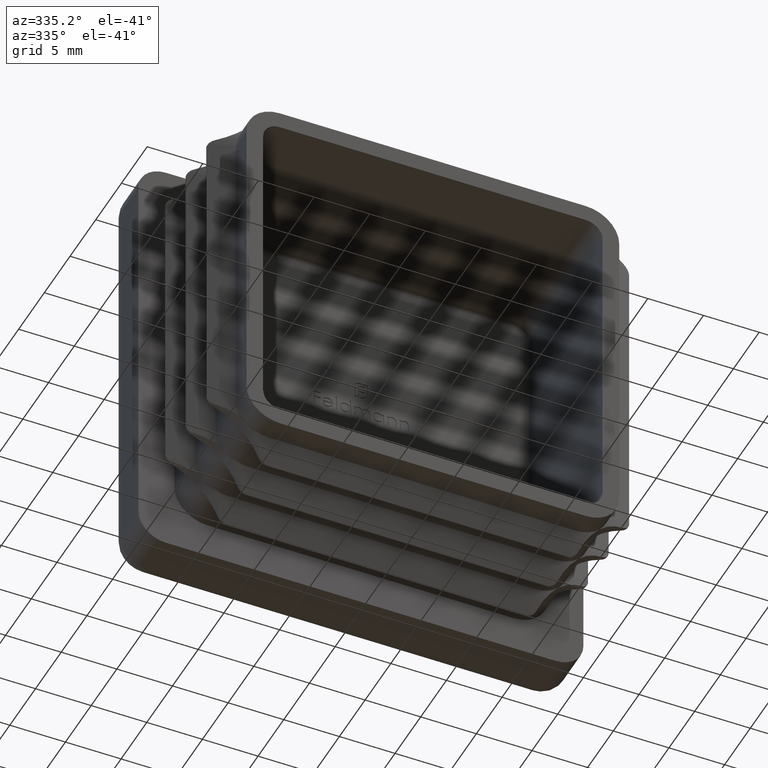
[diagram: clean part render]
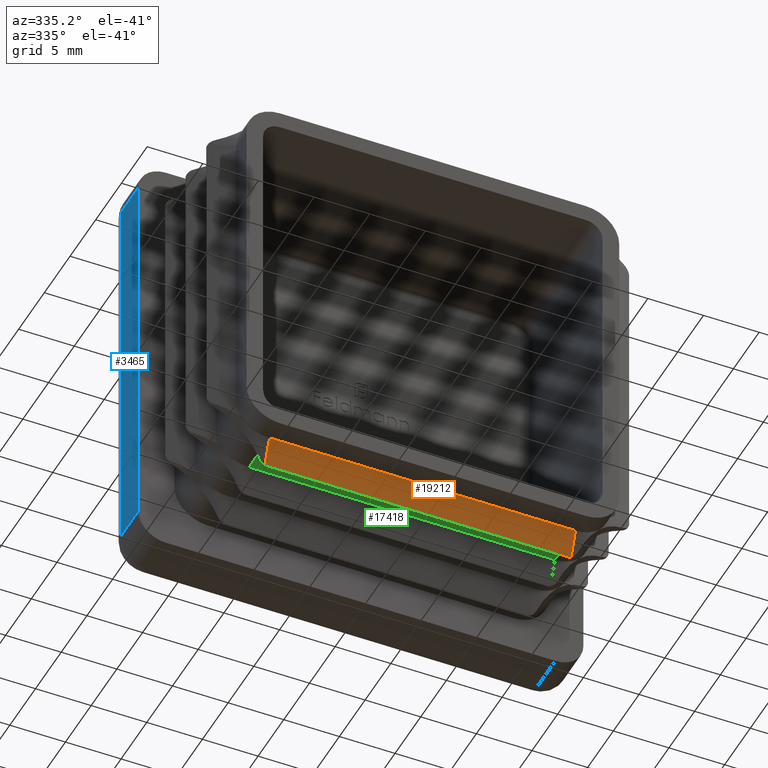
[diagram: same view with three faces highlighted in distinct colors, each labeled with its STEP entity id]
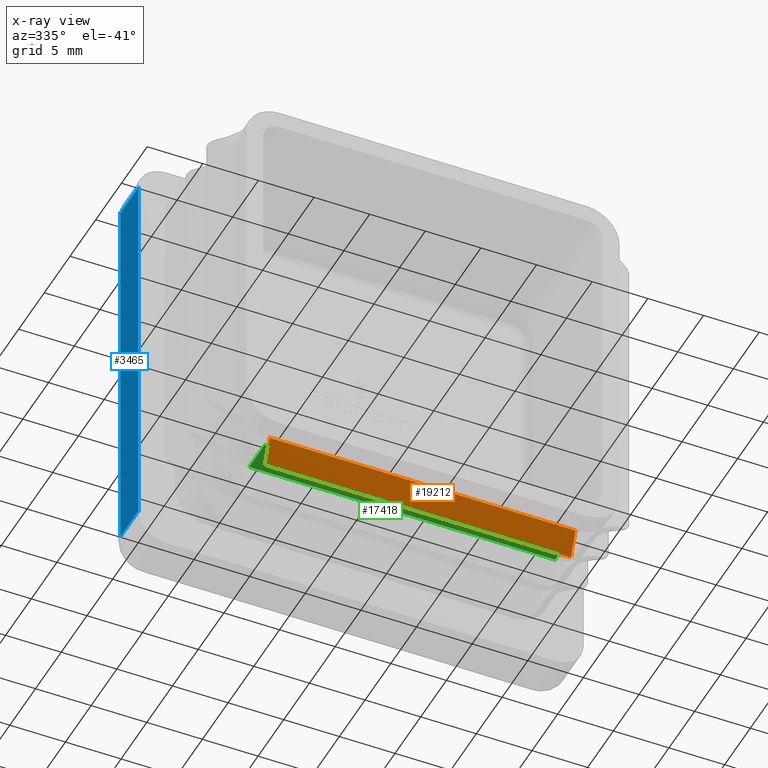
[diagram: x-ray of the same camera — body ghosted, the three highlighted faces saturated]
A machine part, auxiliary view with three faces highlighted in distinct colors.
The next image is the same camera in x-ray (body ghosted, the three faces saturated) — at least one of them is partly hidden behind the body in this view.
Their STEP definitions:

[orange] entity #19212 — the highlighted planar face has unit normal (-0, 0.9261, 0.3772).
#203 = ORIENTED_EDGE ( 'NONE', *, *, #8849, .F. ) ;
#295 = EDGE_CURVE ( 'NONE', #734, #11982, #12676, .T. ) ;
#301 = FACE_OUTER_BOUND ( 'NONE', #11267, .T. ) ;
#607 = VECTOR ( 'NONE', #1997, 1000.000000000000227 ) ;
#696 = CARTESIAN_POINT ( 'NONE',  ( 13.74999999999999822, -11.12035625477346024, -18.90981028720141310 ) ) ;
#734 = VERTEX_POINT ( 'NONE', #15575 ) ;
#1100 = VERTEX_POINT ( 'NONE', #696 ) ;
#1670 = CARTESIAN_POINT ( 'NONE',  ( -13.75000000000000533, -11.12035625477346379, -18.90981028720140955 ) ) ;
#1949 = EDGE_CURVE ( 'NONE', #9783, #1100, #11174, .T. ) ;
#1997 = DIRECTION ( 'NONE',  ( 0.000000000000000000, 0.3771942924919579054, -0.9261341510340126426 ) ) ;
#2446 = CARTESIAN_POINT ( 'NONE',  ( 13.74999999999999822, -11.12035625477346024, -18.90981028720141310 ) ) ;
#3084 = DIRECTION ( 'NONE',  ( -1.000000000000000000, 0.000000000000000000, -1.261617073437677752E-16 ) ) ;
#3707 = VERTEX_POINT ( 'NONE', #18996 ) ;
#3747 = PLANE ( 'NONE',  #4866 ) ;
#4008 = CARTESIAN_POINT ( 'NONE',  ( -13.69602062712401569, -11.11032761986105832, -18.93443383391328538 ) ) ;
#4083 = CARTESIAN_POINT ( 'NONE',  ( -13.58258589888707313, -11.09630670755169923, -18.96885971462469556 ) ) ;
#4263 = CARTESIAN_POINT ( 'NONE',  ( 13.69602062712401569, -11.11032761986106010, -18.93443383391328894 ) ) ;
#4855 = LINE ( 'NONE', #19415, #607 ) ;
#4866 = AXIS2_PLACEMENT_3D ( 'NONE', #5345, #7082, #5415 ) ;
#5047 = VERTEX_POINT ( 'NONE', #17053 ) ;
#5345 = CARTESIAN_POINT ( 'NONE',  ( 13.74999999999999822, -11.09630670755169923, -18.96885971462469200 ) ) ;
#5415 = DIRECTION ( 'NONE',  ( 0.000000000000000000, -0.3771942924919578499, 0.9261341510340126426 ) ) ;
#7082 = DIRECTION ( 'NONE',  ( -4.758747594110993703E-17, 0.9261341510340126426, 0.3771942924919578499 ) ) ;
#7190 = CARTESIAN_POINT ( 'NONE',  ( 13.58258589888708912, -11.09630670755169923, -18.96885971462469200 ) ) ;
#7395 = ORIENTED_EDGE ( 'NONE', *, *, #1949, .F. ) ;
#8041 = ORIENTED_EDGE ( 'NONE', *, *, #17013, .T. ) ;
#8690 = VECTOR ( 'NONE', #12838, 1000.000000000000227 ) ;
#8780 = CARTESIAN_POINT ( 'NONE',  ( -13.75000000000000533, -11.12035625477346379, -18.90981028720140955 ) ) ;
#8849 = EDGE_CURVE ( 'NONE', #3707, #734, #19419, .T. ) ;
#9134 = DIRECTION ( 'NONE',  ( -1.000000000000000000, 0.000000000000000000, -1.261617073437677752E-16 ) ) ;
#9337 = CARTESIAN_POINT ( 'NONE',  ( 13.74999999999999822, -11.09630670755169923, -18.96885971462469200 ) ) ;
#9431 = CARTESIAN_POINT ( 'NONE',  ( 13.74999999999999822, -11.09630670755169923, -18.96885971462469200 ) ) ;
#9783 = VERTEX_POINT ( 'NONE', #17357 ) ;
#10310 = CARTESIAN_POINT ( 'NONE',  ( -13.64006869561508140, -11.10228995391758389, -18.95416890698577816 ) ) ;
#11174 = LINE ( 'NONE', #9431, #8690 ) ;
#11267 = EDGE_LOOP ( 'NONE', ( #16754, #203, #14590, #7395, #16660, #8041 ) ) ;
#11982 = VERTEX_POINT ( 'NONE', #1670 ) ;
#12676 =( BOUNDED_CURVE ( )  B_SPLINE_CURVE ( 3, ( #4083, #10310, #4008, #8780 ),
 .UNSPECIFIED., .F., .F. ) 
 B_SPLINE_CURVE_WITH_KNOTS ( ( 4, 4 ),
 ( 3.391805605384298428, 3.569562260223778871 ),
 .UNSPECIFIED. ) 
 CURVE ( )  GEOMETRIC_REPRESENTATION_ITEM ( )  RATIONAL_B_SPLINE_CURVE ( ( 1.000000000000000000, 0.9973686138443023097, 0.9973686138443023097, 1.000000000000000000 ) ) 
 REPRESENTATION_ITEM ( '' )  );
#12838 = DIRECTION ( 'NONE',  ( -1.168426657238219168E-16, 0.3771942924919579054, -0.9261341510340126426 ) ) ;
#13808 = EDGE_CURVE ( 'NONE', #9783, #5047, #14896, .T. ) ;
#14590 = ORIENTED_EDGE ( 'NONE', *, *, #15741, .T. ) ;
#14877 =( BOUNDED_CURVE ( )  B_SPLINE_CURVE ( 3, ( #7190, #15244, #4263, #2446 ),
 .UNSPECIFIED., .F., .F. ) 
 B_SPLINE_CURVE_WITH_KNOTS ( ( 4, 4 ),
 ( 3.391805605384313971, 3.569562260223771322 ),
 .UNSPECIFIED. ) 
 CURVE ( )  GEOMETRIC_REPRESENTATION_ITEM ( )  RATIONAL_B_SPLINE_CURVE ( ( 1.000000000000000000, 0.9973686138443029758, 0.9973686138443029758, 1.000000000000000000 ) ) 
 REPRESENTATION_ITEM ( '' )  );
#14896 = LINE ( 'NONE', #19968, #15387 ) ;
#15244 = CARTESIAN_POINT ( 'NONE',  ( 13.64006869561509028, -11.10228995391758389, -18.95416890698577816 ) ) ;
#15387 = VECTOR ( 'NONE', #9134, 1000.000000000000000 ) ;
#15575 = CARTESIAN_POINT ( 'NONE',  ( -13.58258589888707313, -11.09630670755169923, -18.96885971462469556 ) ) ;
#15741 = EDGE_CURVE ( 'NONE', #3707, #1100, #14877, .T. ) ;
#15986 = VECTOR ( 'NONE', #3084, 1000.000000000000000 ) ;
#16660 = ORIENTED_EDGE ( 'NONE', *, *, #13808, .T. ) ;
#16754 = ORIENTED_EDGE ( 'NONE', *, *, #295, .F. ) ;
#17013 = EDGE_CURVE ( 'NONE', #5047, #11982, #4855, .T. ) ;
#17053 = CARTESIAN_POINT ( 'NONE',  ( -13.75000000000000533, -12.00000000000000000, -16.75000000000008171 ) ) ;
#17357 = CARTESIAN_POINT ( 'NONE',  ( 13.74999999999999822, -12.00000000000003197, -16.75000000000000000 ) ) ;
#18996 = CARTESIAN_POINT ( 'NONE',  ( 13.58258589888708912, -11.09630670755169923, -18.96885971462469200 ) ) ;
#19212 = ADVANCED_FACE ( 'NONE', ( #301 ), #3747, .F. ) ;
#19415 = CARTESIAN_POINT ( 'NONE',  ( -13.75000000000000533, -11.09630670755169923, -18.96885971462469556 ) ) ;
#19419 = LINE ( 'NONE', #9337, #15986 ) ;
#19968 = CARTESIAN_POINT ( 'NONE',  ( 13.74999999999999822, -12.00000000000000000, -16.75000000000007816 ) ) ;

[blue] entity #3465 — the highlighted planar face has unit normal (1, 0, -0).
#569 = VECTOR ( 'NONE', #6612, 1000.000000000000000 ) ;
#728 = LINE ( 'NONE', #10601, #1979 ) ;
#940 = DIRECTION ( 'NONE',  ( 0.000000000000000000, -1.000000000000000000, 0.000000000000000000 ) ) ;
#1979 = VECTOR ( 'NONE', #940, 1000.000000000000000 ) ;
#2185 = CARTESIAN_POINT ( 'NONE',  ( -19.99999999999999289, 0.000000000000000000, 17.50000000000000711 ) ) ;
#2241 = EDGE_CURVE ( 'NONE', #7523, #6201, #728, .T. ) ;
#2311 = DIRECTION ( 'NONE',  ( -8.673617379884035472E-17, 0.000000000000000000, -1.000000000000000000 ) ) ;
#2652 = LINE ( 'NONE', #9703, #6898 ) ;
#3465 = ADVANCED_FACE ( 'NONE', ( #15887 ), #18141, .F. ) ;
#3963 = DIRECTION ( 'NONE',  ( 8.673617379884035472E-17, 0.000000000000000000, 1.000000000000000000 ) ) ;
#4344 = ORIENTED_EDGE ( 'NONE', *, *, #18214, .T. ) ;
#5327 = LINE ( 'NONE', #16113, #569 ) ;
#6201 = VERTEX_POINT ( 'NONE', #12084 ) ;
#6612 = DIRECTION ( 'NONE',  ( -0.000000000000000000, 1.000000000000000000, -0.000000000000000000 ) ) ;
#6668 = DIRECTION ( 'NONE',  ( -8.673617379884035472E-17, -0.000000000000000000, -1.000000000000000000 ) ) ;
#6898 = VECTOR ( 'NONE', #6668, 1000.000000000000000 ) ;
#6910 = VERTEX_POINT ( 'NONE', #2185 ) ;
#7523 = VERTEX_POINT ( 'NONE', #7534 ) ;
#7534 = CARTESIAN_POINT ( 'NONE',  ( -19.99999999999999645, 3.500000000000000000, -17.49999999999999645 ) ) ;
#7656 = ORIENTED_EDGE ( 'NONE', *, *, #14729, .T. ) ;
#7912 = LINE ( 'NONE', #19495, #11601 ) ;
#8078 = VERTEX_POINT ( 'NONE', #9592 ) ;
#8461 = ORIENTED_EDGE ( 'NONE', *, *, #15058, .T. ) ;
#9417 = EDGE_LOOP ( 'NONE', ( #4344, #8461, #9848, #7656 ) ) ;
#9592 = CARTESIAN_POINT ( 'NONE',  ( -19.99999999999999289, 3.500000000000000000, 17.50000000000000711 ) ) ;
#9703 = CARTESIAN_POINT ( 'NONE',  ( -19.99999999999999645, 3.500000000000000000, -17.49999999999999645 ) ) ;
#9848 = ORIENTED_EDGE ( 'NONE', *, *, #2241, .T. ) ;
#10369 = CARTESIAN_POINT ( 'NONE',  ( -19.99999999999999645, 5.000000000000000000, -19.99999999999999645 ) ) ;
#10601 = CARTESIAN_POINT ( 'NONE',  ( -19.99999999999999645, 5.000000000000000000, -17.49999999999999645 ) ) ;
#11601 = VECTOR ( 'NONE', #3963, 1000.000000000000000 ) ;
#12084 = CARTESIAN_POINT ( 'NONE',  ( -19.99999999999999645, 0.000000000000000000, -17.49999999999999645 ) ) ;
#13081 = DIRECTION ( 'NONE',  ( 1.000000000000000000, 0.000000000000000000, -8.673617379884035472E-17 ) ) ;
#13208 = AXIS2_PLACEMENT_3D ( 'NONE', #10369, #13081, #2311 ) ;
#14729 = EDGE_CURVE ( 'NONE', #6201, #6910, #7912, .T. ) ;
#15058 = EDGE_CURVE ( 'NONE', #8078, #7523, #2652, .T. ) ;
#15887 = FACE_OUTER_BOUND ( 'NONE', #9417, .T. ) ;
#16113 = CARTESIAN_POINT ( 'NONE',  ( -19.99999999999999289, 5.000000000000000000, 17.50000000000000711 ) ) ;
#18141 = PLANE ( 'NONE',  #13208 ) ;
#18214 = EDGE_CURVE ( 'NONE', #6910, #8078, #5327, .T. ) ;
#19495 = CARTESIAN_POINT ( 'NONE',  ( -19.99999999999999645, 0.000000000000000000, -19.99999999999999645 ) ) ;

[green] entity #17418 — the highlighted planar face has unit normal (-0, 0, 1).
#660 = CARTESIAN_POINT ( 'NONE',  ( 13.74999999999999822, -14.00000000000000000, -16.75000000000000000 ) ) ;
#1191 = EDGE_CURVE ( 'NONE', #6363, #15184, #2423, .T. ) ;
#1841 = DIRECTION ( 'NONE',  ( 1.000000000000000000, 0.000000000000000000, 0.000000000000000000 ) ) ;
#2423 = LINE ( 'NONE', #4762, #18810 ) ;
#3269 = CARTESIAN_POINT ( 'NONE',  ( 13.74999999999999822, -11.00000000000000000, -16.75000000000007816 ) ) ;
#3519 = PLANE ( 'NONE',  #12540 ) ;
#4762 = CARTESIAN_POINT ( 'NONE',  ( 13.74999999999999822, -11.00000000000000000, -16.75000000000007816 ) ) ;
#4867 = CARTESIAN_POINT ( 'NONE',  ( -13.75000000000000533, -8.000000000000015987, -16.75000000000000000 ) ) ;
#5485 = CARTESIAN_POINT ( 'NONE',  ( -13.75000000000000533, -14.00000000000000000, -16.75000000000000000 ) ) ;
#5604 = FACE_OUTER_BOUND ( 'NONE', #18983, .T. ) ;
#6363 = VERTEX_POINT ( 'NONE', #3269 ) ;
#6805 = CARTESIAN_POINT ( 'NONE',  ( -13.75000000000000533, -11.00000000000000000, -16.75000000000000000 ) ) ;
#6889 = CARTESIAN_POINT ( 'NONE',  ( 13.74999999999999822, -8.000000000000000000, -16.75000000000003553 ) ) ;
#7574 = LINE ( 'NONE', #9727, #9286 ) ;
#7682 = EDGE_CURVE ( 'NONE', #15963, #18144, #7574, .T. ) ;
#8504 = LINE ( 'NONE', #660, #8749 ) ;
#8532 = ORIENTED_EDGE ( 'NONE', *, *, #19359, .F. ) ;
#8727 = DIRECTION ( 'NONE',  ( -0.000000000000000000, 1.000000000000000000, -0.000000000000000000 ) ) ;
#8749 = VECTOR ( 'NONE', #8727, 1000.000000000000000 ) ;
#9286 = VECTOR ( 'NONE', #9857, 1000.000000000000000 ) ;
#9294 = ORIENTED_EDGE ( 'NONE', *, *, #1191, .T. ) ;
#9727 = CARTESIAN_POINT ( 'NONE',  ( 13.74999999999999822, -8.000000000000000000, -16.75000000000003553 ) ) ;
#9857 = DIRECTION ( 'NONE',  ( -1.000000000000000000, 0.000000000000000000, -1.261617073437677752E-16 ) ) ;
#10533 = DIRECTION ( 'NONE',  ( -0.000000000000000000, 1.000000000000000000, -0.000000000000000000 ) ) ;
#11401 = DIRECTION ( 'NONE',  ( -0.000000000000000000, 0.000000000000000000, 1.000000000000000000 ) ) ;
#11741 = VECTOR ( 'NONE', #10533, 1000.000000000000000 ) ;
#12540 = AXIS2_PLACEMENT_3D ( 'NONE', #12957, #11401, #1841 ) ;
#12592 = DIRECTION ( 'NONE',  ( -1.000000000000000000, 0.000000000000000000, -1.261617073437677752E-16 ) ) ;
#12957 = CARTESIAN_POINT ( 'NONE',  ( -13.75000000000000533, -14.00000000000000000, -16.75000000000000000 ) ) ;
#14520 = LINE ( 'NONE', #5485, #11741 ) ;
#15184 = VERTEX_POINT ( 'NONE', #6805 ) ;
#15963 = VERTEX_POINT ( 'NONE', #6889 ) ;
#17418 = ADVANCED_FACE ( 'NONE', ( #5604 ), #3519, .F. ) ;
#18140 = ORIENTED_EDGE ( 'NONE', *, *, #18389, .T. ) ;
#18144 = VERTEX_POINT ( 'NONE', #4867 ) ;
#18389 = EDGE_CURVE ( 'NONE', #15184, #18144, #14520, .T. ) ;
#18810 = VECTOR ( 'NONE', #12592, 1000.000000000000000 ) ;
#18983 = EDGE_LOOP ( 'NONE', ( #9294, #18140, #20519, #8532 ) ) ;
#19359 = EDGE_CURVE ( 'NONE', #6363, #15963, #8504, .T. ) ;
#20519 = ORIENTED_EDGE ( 'NONE', *, *, #7682, .F. ) ;